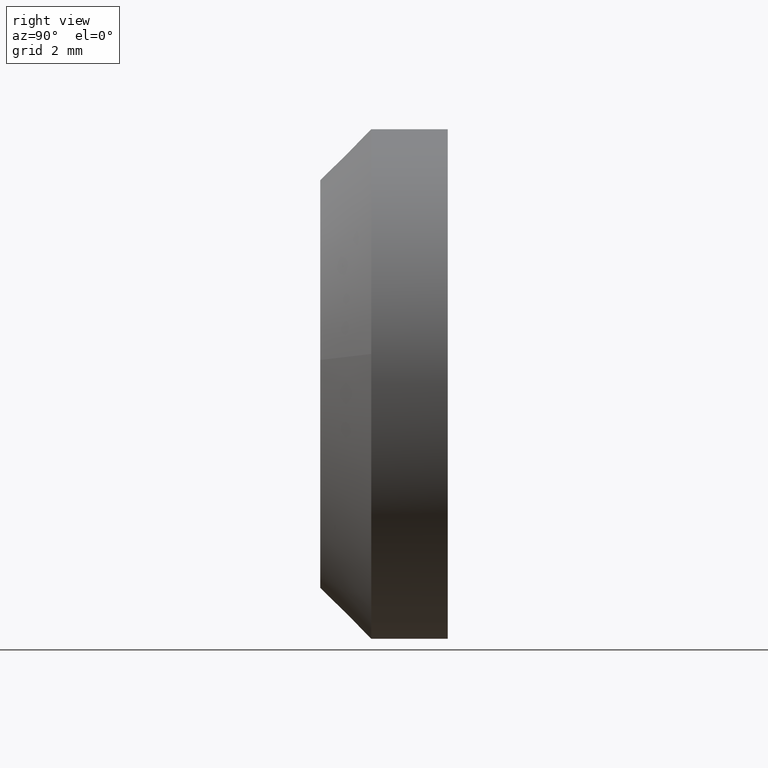
[diagram: clean part render]
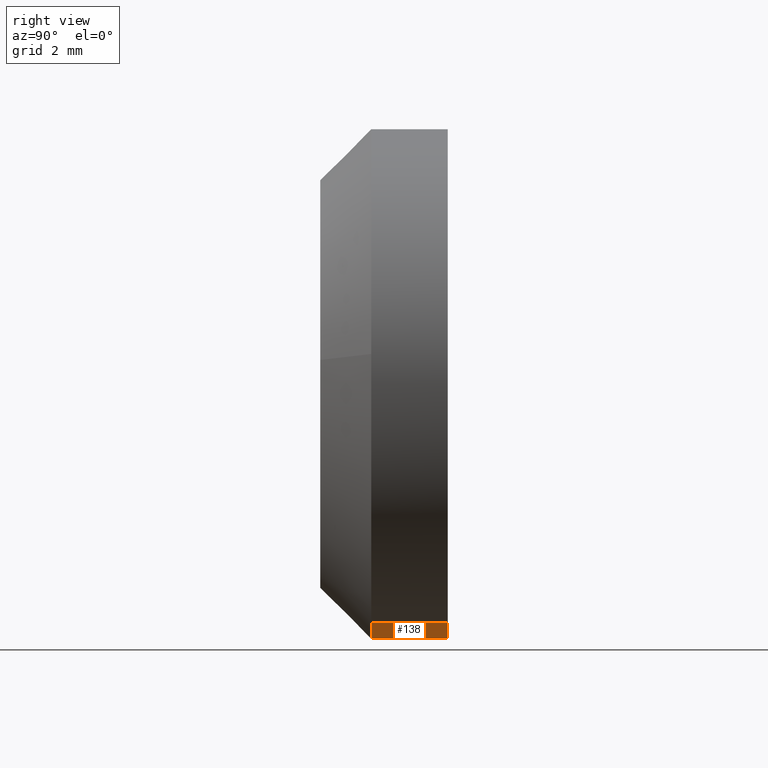
[diagram: same view with one face highlighted and labeled with its STEP entity id]
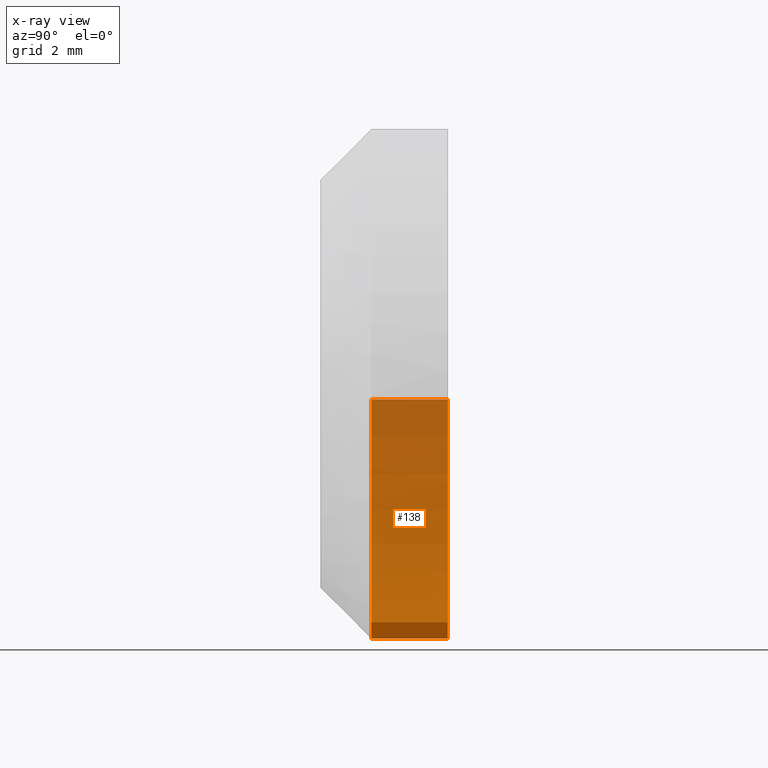
[diagram: x-ray of the same camera — body ghosted, the highlighted face saturated]
A machine part, right view. The second image highlights one B-rep face of the part: STEP entity #138.
The next image is the same camera in x-ray: the body ghosted, the highlighted face saturated — about 93% of this face is hidden behind the body in this view.
In plain terms, the highlighted face is a freeform B-spline surface patch.
Its self-contained STEP definition (entity closure, byte-faithful):
#44=CARTESIAN_POINT('',(1.758089871957861,-0.037500000000000,-4.680717893883286));
#45=CARTESIAN_POINT('',(1.054947258577041,-0.037500000000000,-4.944820096825753));
#46=CARTESIAN_POINT('',(0.305242697674285,-0.037500000000000,-4.990673992109334));
#47=CARTESIAN_POINT('',(-4.685431294435048,-0.037500000000000,-5.295916689783620));
#48=CARTESIAN_POINT('',(-4.990673992109334,-0.037500000000000,-0.305242697674285));
#49=CARTESIAN_POINT('',(1.758089871957861,1.538437500000001,-4.680717893883286));
#50=CARTESIAN_POINT('',(1.054947258577041,1.538437500000000,-4.944820096825753));
#51=CARTESIAN_POINT('',(0.305242697674285,1.538437500000000,-4.990673992109334));
#52=CARTESIAN_POINT('',(-4.685431294435048,1.538437500000001,-5.295916689783620));
#53=CARTESIAN_POINT('',(-4.990673992109334,1.538437500000000,-0.305242697674285));
#61=(BOUNDED_SURFACE()B_SPLINE_SURFACE(2,1,((#44,#49),(#45,#50),(#46,#51),(#47,#52),(#48,#53)),.UNSPECIFIED.,.F.,.F.,.U.)B_SPLINE_SURFACE_WITH_KNOTS((3,2,3),(2,2),(0.0,1.656854249492380,9.941125496954278),(0.0,1.0),.UNSPECIFIED.)GEOMETRIC_REPRESENTATION_ITEM()RATIONAL_B_SPLINE_SURFACE(((0.906274169979695,0.906274169979695),(0.941421356237309,0.941421356237309),(1.0,1.0),(0.707106781186548,0.707106781186548),(1.0,1.0)))REPRESENTATION_ITEM('')SURFACE());
#62=CARTESIAN_POINT('',(1.758087682605363,1.053535E-014,-4.680718716208636));
#63=VERTEX_POINT('',#62);
#64=CARTESIAN_POINT('',(0.0,0.0,-5.0));
#65=VERTEX_POINT('',#64);
#66=CARTESIAN_POINT('',(1.758087682605364,1.053535E-014,-4.680718716208636));
#67=CARTESIAN_POINT('',(0.908035722421032,0.0,-5.000000000000001));
#68=CARTESIAN_POINT('',(0.0,0.0,-5.0));
#76=(BOUNDED_CURVE()B_SPLINE_CURVE(2,(#66,#67,#68),.UNSPECIFIED.,.F.,.U.)B_SPLINE_CURVE_WITH_KNOTS((3,3),(0.440284244778167,0.500000000000000),.UNSPECIFIED.)CURVE()GEOMETRIC_REPRESENTATION_ITEM()RATIONAL_B_SPLINE_CURVE((0.893499645046490,0.930038640956804,1.0))REPRESENTATION_ITEM(''));
#77=EDGE_CURVE('',#63,#65,#76,.T.);
#78=ORIENTED_EDGE('',*,*,#77,.T.);
#79=CARTESIAN_POINT('',(-4.990673992109418,2.867984E-013,-0.305242697675468));
#80=VERTEX_POINT('',#79);
#81=CARTESIAN_POINT('',(0.0,0.0,-5.0));
#82=CARTESIAN_POINT('',(-4.703530334524016,0.0,-5.0));
#83=CARTESIAN_POINT('',(-4.990673992109418,2.867984E-013,-0.305242697675468));
#91=(BOUNDED_CURVE()B_SPLINE_CURVE(2,(#81,#82,#83),.UNSPECIFIED.,.F.,.U.)B_SPLINE_CURVE_WITH_KNOTS((3,3),(0.500000000000000,0.739332962241805),.UNSPECIFIED.)CURVE()GEOMETRIC_REPRESENTATION_ITEM()RATIONAL_B_SPLINE_CURVE((1.0,0.719603993283357,0.976072041672852))REPRESENTATION_ITEM(''));
#92=EDGE_CURVE('',#65,#80,#91,.T.);
#93=ORIENTED_EDGE('',*,*,#92,.T.);
#94=CARTESIAN_POINT('',(-4.990674099992546,1.500000000000000,-0.305240933789139));
#95=VERTEX_POINT('',#94);
#96=CARTESIAN_POINT('',(-4.990673992109418,2.867984E-013,-0.305242697675468));
#97=CARTESIAN_POINT('',(-4.990674099992546,1.500000000000000,-0.305240933789139));
#98=QUASI_UNIFORM_CURVE('',1,(#96,#97),.UNSPECIFIED.,.F.,.U.);
#99=EDGE_CURVE('',#80,#95,#98,.T.);
#100=ORIENTED_EDGE('',*,*,#99,.T.);
#101=CARTESIAN_POINT('',(0.0,1.500000000000000,-5.0));
#102=VERTEX_POINT('',#101);
#103=CARTESIAN_POINT('',(0.0,1.500000000000000,-5.0));
#104=CARTESIAN_POINT('',(-4.703532000033385,1.500000000000000,-5.000000000000001));
#105=CARTESIAN_POINT('',(-4.990674099992546,1.500000000000000,-0.305240933789139));
#113=(BOUNDED_CURVE()B_SPLINE_CURVE(2,(#103,#104,#105),.UNSPECIFIED.,.F.,.U.)B_SPLINE_CURVE_WITH_KNOTS((3,3),(0.500000000000000,0.739333023226263),.UNSPECIFIED.)CURVE()GEOMETRIC_REPRESENTATION_ITEM()RATIONAL_B_SPLINE_CURVE((1.0,0.719603921835620,0.976072172374189))REPRESENTATION_ITEM(''));
#114=EDGE_CURVE('',#102,#95,#113,.T.);
#115=ORIENTED_EDGE('',*,*,#114,.F.);
#116=CARTESIAN_POINT('',(1.758088082475057,1.500000000000000,-4.680718566016922));
#117=VERTEX_POINT('',#116);
#118=CARTESIAN_POINT('',(1.758088082475058,1.500000000000000,-4.680718566016923));
#119=CARTESIAN_POINT('',(0.908035943037687,1.500000000000000,-5.0));
#120=CARTESIAN_POINT('',(0.0,1.500000000000000,-5.0));
#128=(BOUNDED_CURVE()B_SPLINE_CURVE(2,(#118,#119,#120),.UNSPECIFIED.,.F.,.U.)B_SPLINE_CURVE_WITH_KNOTS((3,3),(0.440284231284646,0.500000000000000),.UNSPECIFIED.)CURVE()GEOMETRIC_REPRESENTATION_ITEM()RATIONAL_B_SPLINE_CURVE((0.893499628533607,0.930038625148161,1.0))REPRESENTATION_ITEM(''));
#129=EDGE_CURVE('',#117,#102,#128,.T.);
#130=ORIENTED_EDGE('',*,*,#129,.F.);
#131=CARTESIAN_POINT('',(1.758087682605363,1.053535E-014,-4.680718716208636));
#132=CARTESIAN_POINT('',(1.758088082475057,1.500000000000000,-4.680718566016922));
#133=QUASI_UNIFORM_CURVE('',1,(#131,#132),.UNSPECIFIED.,.F.,.U.);
#134=EDGE_CURVE('',#63,#117,#133,.T.);
#135=ORIENTED_EDGE('',*,*,#134,.F.);
#136=EDGE_LOOP('',(#78,#93,#100,#115,#130,#135));
#137=FACE_OUTER_BOUND('',#136,.T.);
#138=ADVANCED_FACE('',(#137),#61,.T.);